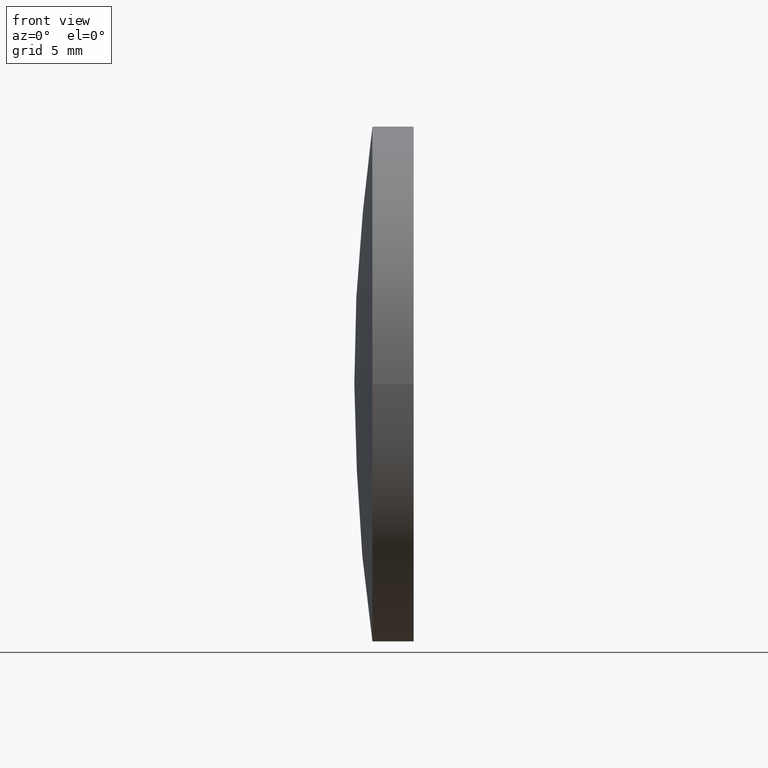
[diagram: clean part render]
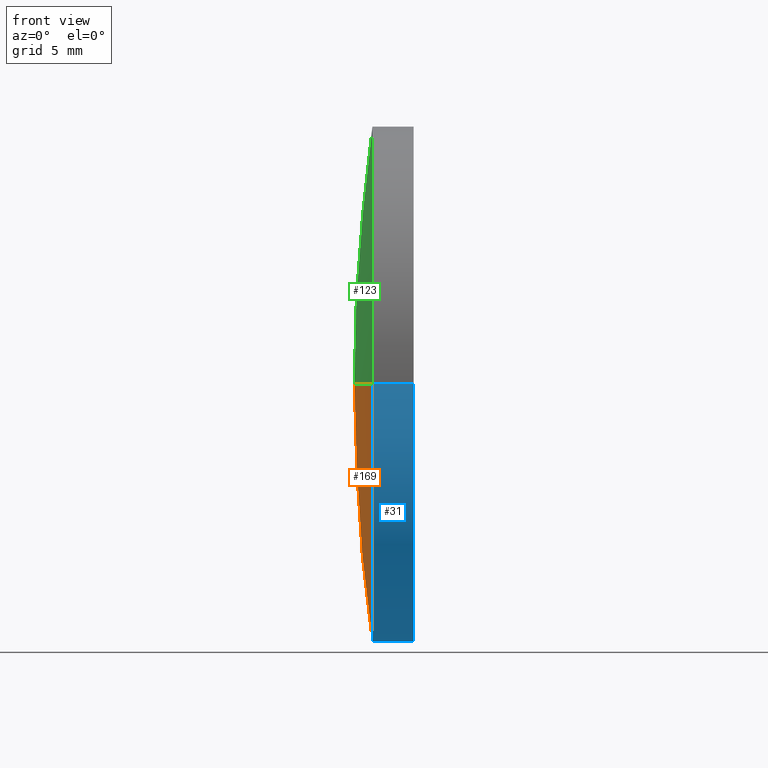
[diagram: same view with three faces highlighted in distinct colors, each labeled with its STEP entity id]
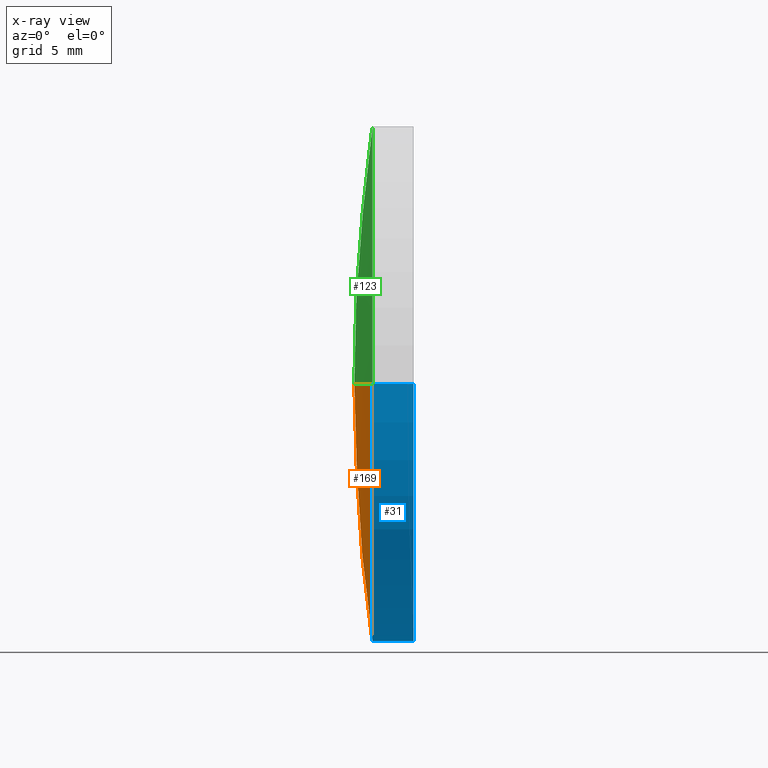
[diagram: x-ray of the same camera — body ghosted, the three highlighted faces saturated]
A machine part, front view with three faces highlighted in distinct colors.
The next image is the same camera in x-ray (body ghosted, the three faces saturated) — at least one of them is partly hidden behind the body in this view.
Their STEP definitions:

[orange] entity #169 — the highlighted spherical surface has radius 136.3 mm.
#1 = AXIS2_PLACEMENT_3D ( 'NONE', #49, #84, #161 ) ;
#3 = EDGE_CURVE ( 'NONE', #71, #23, #38, .T. ) ;
#8 = ORIENTED_EDGE ( 'NONE', *, *, #173, .T. ) ;
#22 = DIRECTION ( 'NONE',  ( 1.000000000000000000, 0.0000000000000000000, 0.0000000000000000000 ) ) ;
#23 = VERTEX_POINT ( 'NONE', #132 ) ;
#25 = DIRECTION ( 'NONE',  ( -8.496118506040342700E-032, 1.224646799147353200E-016, -1.000000000000000000 ) ) ;
#29 = CARTESIAN_POINT ( 'NONE',  ( 259.1554213155558800, 65.21684047094031200, 0.0000000000000000000 ) ) ;
#35 = CARTESIAN_POINT ( 'NONE',  ( 124.1897242847917700, 65.21684047094032600, 0.0000000000000000000 ) ) ;
#38 = CIRCLE ( 'NONE', #50, 136.3000000000000400 ) ;
#46 = DIRECTION ( 'NONE',  ( 7.294500818824946100E-016, -1.000000000000000000, 0.0000000000000000000 ) ) ;
#49 = CARTESIAN_POINT ( 'NONE',  ( 259.1554213155558800, 65.21684047094031200, 0.0000000000000000000 ) ) ;
#50 = AXIS2_PLACEMENT_3D ( 'NONE', #29, #148, #22 ) ;
#64 = EDGE_CURVE ( 'NONE', #71, #124, #66, .T. ) ;
#66 = CIRCLE ( 'NONE', #131, 19.02499999999999500 ) ;
#67 = DIRECTION ( 'NONE',  ( -1.000000000000000000, -6.937607244762875000E-016, -0.0000000000000000000 ) ) ;
#71 = VERTEX_POINT ( 'NONE', #120 ) ;
#72 = CARTESIAN_POINT ( 'NONE',  ( 124.1897242847917800, 46.19184047094033500, 0.0000000000000000000 ) ) ;
#84 = DIRECTION ( 'NONE',  ( -0.0000000000000000000, 0.0000000000000000000, -1.000000000000000000 ) ) ;
#99 = CARTESIAN_POINT ( 'NONE',  ( 259.1554213155558800, 65.21684047094031200, 0.0000000000000000000 ) ) ;
#115 = EDGE_LOOP ( 'NONE', ( #158, #8, #133 ) ) ;
#120 = CARTESIAN_POINT ( 'NONE',  ( 124.1897242847917500, 84.24184047094033200, 2.329890535377839500E-015 ) ) ;
#124 = VERTEX_POINT ( 'NONE', #72 ) ;
#128 = DIRECTION ( 'NONE',  ( 0.0000000000000000000, 1.000000000000000000, 1.224646799147353200E-016 ) ) ;
#130 = CIRCLE ( 'NONE', #191, 136.3000000000000400 ) ;
#131 = AXIS2_PLACEMENT_3D ( 'NONE', #35, #67, #46 ) ;
#132 = CARTESIAN_POINT ( 'NONE',  ( 122.8554213155558300, 65.21684047094022700, 0.0000000000000000000 ) ) ;
#133 = ORIENTED_EDGE ( 'NONE', *, *, #3, .F. ) ;
#148 = DIRECTION ( 'NONE',  ( -0.0000000000000000000, 0.0000000000000000000, 1.000000000000000000 ) ) ;
#158 = ORIENTED_EDGE ( 'NONE', *, *, #64, .T. ) ;
#161 = DIRECTION ( 'NONE',  ( -8.145436717719414800E-016, 1.000000000000000000, 0.0000000000000000000 ) ) ;
#169 = ADVANCED_FACE ( 'NONE', ( #177 ), #171, .T. ) ;
#171 = SPHERICAL_SURFACE ( 'NONE', #1, 136.3000000000000400 ) ;
#173 = EDGE_CURVE ( 'NONE', #124, #23, #130, .T. ) ;
#177 = FACE_OUTER_BOUND ( 'NONE', #115, .T. ) ;
#191 = AXIS2_PLACEMENT_3D ( 'NONE', #99, #25, #128 ) ;

[blue] entity #31 — the highlighted cylindrical surface (partial cylindrical patch) has radius 19.025 mm, axis along (-1, -0, -0).
#7 = VECTOR ( 'NONE', #172, 1000.000000000000000 ) ;
#10 = FACE_OUTER_BOUND ( 'NONE', #144, .T. ) ;
#15 = DIRECTION ( 'NONE',  ( 0.0000000000000000000, -1.000000000000000000, 0.0000000000000000000 ) ) ;
#28 = CARTESIAN_POINT ( 'NONE',  ( 115.9444912979631700, 65.21684047094032600, 0.0000000000000000000 ) ) ;
#31 = ADVANCED_FACE ( 'NONE', ( #10 ), #145, .T. ) ;
#34 = AXIS2_PLACEMENT_3D ( 'NONE', #69, #175, #15 ) ;
#35 = CARTESIAN_POINT ( 'NONE',  ( 124.1897242847917700, 65.21684047094032600, 0.0000000000000000000 ) ) ;
#36 = CIRCLE ( 'NONE', #34, 19.02500000000002000 ) ;
#46 = DIRECTION ( 'NONE',  ( 7.294500818824946100E-016, -1.000000000000000000, 0.0000000000000000000 ) ) ;
#60 = ORIENTED_EDGE ( 'NONE', *, *, #81, .F. ) ;
#61 = VERTEX_POINT ( 'NONE', #186 ) ;
#62 = DIRECTION ( 'NONE',  ( -1.000000000000000000, -6.937607244762875000E-016, -0.0000000000000000000 ) ) ;
#64 = EDGE_CURVE ( 'NONE', #71, #124, #66, .T. ) ;
#65 = CARTESIAN_POINT ( 'NONE',  ( 115.9444912979631500, 84.24184047094033200, 2.329890535377840300E-015 ) ) ;
#66 = CIRCLE ( 'NONE', #131, 19.02499999999999500 ) ;
#67 = DIRECTION ( 'NONE',  ( -1.000000000000000000, -6.937607244762875000E-016, -0.0000000000000000000 ) ) ;
#69 = CARTESIAN_POINT ( 'NONE',  ( 127.2319709531308800, 65.21684047094034000, 0.0000000000000000000 ) ) ;
#71 = VERTEX_POINT ( 'NONE', #120 ) ;
#72 = CARTESIAN_POINT ( 'NONE',  ( 124.1897242847917800, 46.19184047094033500, 0.0000000000000000000 ) ) ;
#81 = EDGE_CURVE ( 'NONE', #61, #71, #135, .T. ) ;
#93 = CARTESIAN_POINT ( 'NONE',  ( 115.9444912979631800, 46.19184047094032100, 0.0000000000000000000 ) ) ;
#105 = EDGE_CURVE ( 'NONE', #140, #124, #114, .T. ) ;
#111 = ORIENTED_EDGE ( 'NONE', *, *, #121, .T. ) ;
#114 = LINE ( 'NONE', #93, #116 ) ;
#116 = VECTOR ( 'NONE', #189, 1000.000000000000000 ) ;
#117 = ORIENTED_EDGE ( 'NONE', *, *, #105, .T. ) ;
#120 = CARTESIAN_POINT ( 'NONE',  ( 124.1897242847917500, 84.24184047094033200, 2.329890535377839500E-015 ) ) ;
#121 = EDGE_CURVE ( 'NONE', #61, #140, #36, .T. ) ;
#124 = VERTEX_POINT ( 'NONE', #72 ) ;
#131 = AXIS2_PLACEMENT_3D ( 'NONE', #35, #67, #46 ) ;
#135 = LINE ( 'NONE', #65, #7 ) ;
#136 = DIRECTION ( 'NONE',  ( 7.294500818824942100E-016, -1.000000000000000000, 0.0000000000000000000 ) ) ;
#139 = CARTESIAN_POINT ( 'NONE',  ( 127.2319709531309400, 46.19184047093946800, -2.329890535377901000E-015 ) ) ;
#140 = VERTEX_POINT ( 'NONE', #139 ) ;
#144 = EDGE_LOOP ( 'NONE', ( #60, #111, #117, #185 ) ) ;
#145 = CYLINDRICAL_SURFACE ( 'NONE', #182, 19.02500000000000600 ) ;
#172 = DIRECTION ( 'NONE',  ( -1.000000000000000000, -6.937607244762875000E-016, -0.0000000000000000000 ) ) ;
#175 = DIRECTION ( 'NONE',  ( -1.000000000000000000, -6.937607244762875000E-016, -0.0000000000000000000 ) ) ;
#182 = AXIS2_PLACEMENT_3D ( 'NONE', #28, #62, #136 ) ;
#185 = ORIENTED_EDGE ( 'NONE', *, *, #64, .F. ) ;
#186 = CARTESIAN_POINT ( 'NONE',  ( 127.2319709531309400, 84.24184047094084300, 0.0000000000000000000 ) ) ;
#189 = DIRECTION ( 'NONE',  ( -1.000000000000000000, -6.937607244762875000E-016, -0.0000000000000000000 ) ) ;

[green] entity #123 — the highlighted spherical surface has radius 136.3 mm.
#3 = EDGE_CURVE ( 'NONE', #71, #23, #38, .T. ) ;
#14 = DIRECTION ( 'NONE',  ( -0.0000000000000000000, 0.0000000000000000000, -1.000000000000000000 ) ) ;
#16 = DIRECTION ( 'NONE',  ( -1.000000000000000000, -6.937607244762875000E-016, -0.0000000000000000000 ) ) ;
#22 = DIRECTION ( 'NONE',  ( 1.000000000000000000, 0.0000000000000000000, 0.0000000000000000000 ) ) ;
#23 = VERTEX_POINT ( 'NONE', #132 ) ;
#25 = DIRECTION ( 'NONE',  ( -8.496118506040342700E-032, 1.224646799147353200E-016, -1.000000000000000000 ) ) ;
#29 = CARTESIAN_POINT ( 'NONE',  ( 259.1554213155558800, 65.21684047094031200, 0.0000000000000000000 ) ) ;
#38 = CIRCLE ( 'NONE', #50, 136.3000000000000400 ) ;
#50 = AXIS2_PLACEMENT_3D ( 'NONE', #29, #148, #22 ) ;
#52 = AXIS2_PLACEMENT_3D ( 'NONE', #106, #14, #54 ) ;
#54 = DIRECTION ( 'NONE',  ( -8.145436717719414800E-016, 1.000000000000000000, 0.0000000000000000000 ) ) ;
#63 = SPHERICAL_SURFACE ( 'NONE', #52, 136.3000000000000400 ) ;
#71 = VERTEX_POINT ( 'NONE', #120 ) ;
#72 = CARTESIAN_POINT ( 'NONE',  ( 124.1897242847917800, 46.19184047094033500, 0.0000000000000000000 ) ) ;
#74 = DIRECTION ( 'NONE',  ( 7.294500818824946100E-016, -1.000000000000000000, 0.0000000000000000000 ) ) ;
#75 = FACE_OUTER_BOUND ( 'NONE', #178, .T. ) ;
#76 = AXIS2_PLACEMENT_3D ( 'NONE', #126, #16, #74 ) ;
#99 = CARTESIAN_POINT ( 'NONE',  ( 259.1554213155558800, 65.21684047094031200, 0.0000000000000000000 ) ) ;
#102 = ORIENTED_EDGE ( 'NONE', *, *, #142, .T. ) ;
#106 = CARTESIAN_POINT ( 'NONE',  ( 259.1554213155558800, 65.21684047094031200, 0.0000000000000000000 ) ) ;
#120 = CARTESIAN_POINT ( 'NONE',  ( 124.1897242847917500, 84.24184047094033200, 2.329890535377839500E-015 ) ) ;
#123 = ADVANCED_FACE ( 'NONE', ( #75 ), #63, .T. ) ;
#124 = VERTEX_POINT ( 'NONE', #72 ) ;
#126 = CARTESIAN_POINT ( 'NONE',  ( 124.1897242847917700, 65.21684047094032600, 0.0000000000000000000 ) ) ;
#128 = DIRECTION ( 'NONE',  ( 0.0000000000000000000, 1.000000000000000000, 1.224646799147353200E-016 ) ) ;
#130 = CIRCLE ( 'NONE', #191, 136.3000000000000400 ) ;
#132 = CARTESIAN_POINT ( 'NONE',  ( 122.8554213155558300, 65.21684047094022700, 0.0000000000000000000 ) ) ;
#142 = EDGE_CURVE ( 'NONE', #124, #71, #162, .T. ) ;
#148 = DIRECTION ( 'NONE',  ( -0.0000000000000000000, 0.0000000000000000000, 1.000000000000000000 ) ) ;
#162 = CIRCLE ( 'NONE', #76, 19.02499999999999500 ) ;
#165 = ORIENTED_EDGE ( 'NONE', *, *, #3, .T. ) ;
#173 = EDGE_CURVE ( 'NONE', #124, #23, #130, .T. ) ;
#178 = EDGE_LOOP ( 'NONE', ( #187, #102, #165 ) ) ;
#187 = ORIENTED_EDGE ( 'NONE', *, *, #173, .F. ) ;
#191 = AXIS2_PLACEMENT_3D ( 'NONE', #99, #25, #128 ) ;